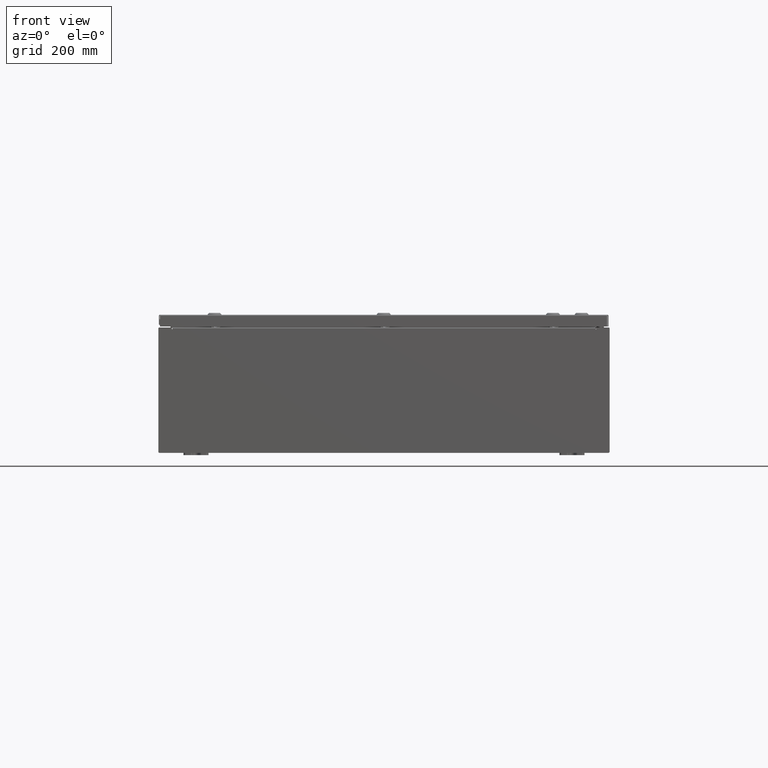
[diagram: clean part render]
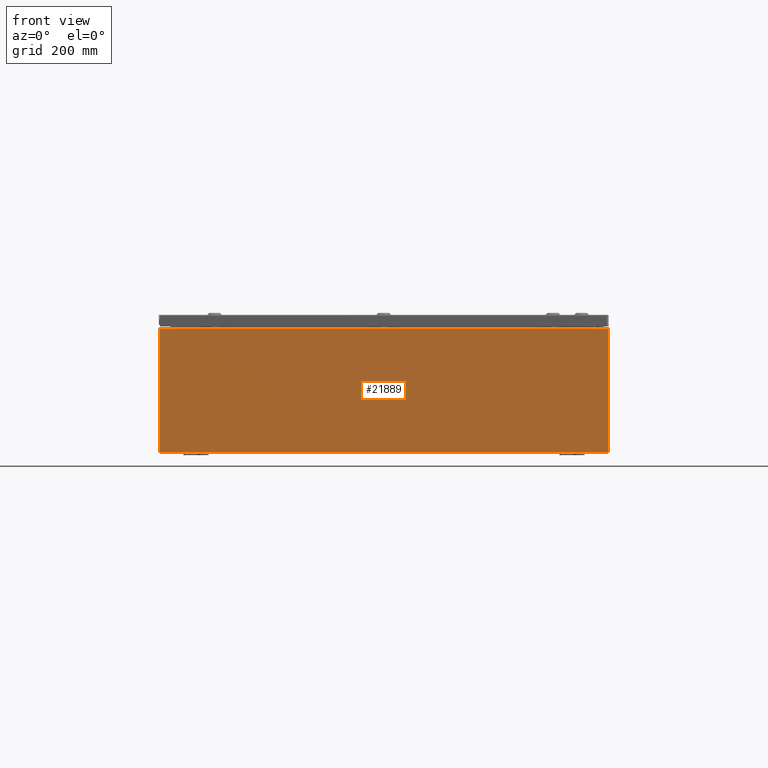
[diagram: same view with one face highlighted and labeled with its STEP entity id]
A machine part, front view. The second image highlights one B-rep face of the part: STEP entity #21889.
In plain terms, the highlighted planar face has unit normal (-0, 1, -0).
Its self-contained STEP definition (entity closure, byte-faithful):
#739 = FACE_OUTER_BOUND ( 'NONE', #53026, .T. ) ;
#749 = ORIENTED_EDGE ( 'NONE', *, *, #16635, .T. ) ;
#1988 = CARTESIAN_POINT ( 'NONE',  ( -17.92530000000000000, 0.0000000000000000000, -4.925300000000000000 ) ) ;
#2176 = VERTEX_POINT ( 'NONE', #13886 ) ;
#2668 = DIRECTION ( 'NONE',  ( 0.0000000000000000000, 0.0000000000000000000, -1.000000000000000000 ) ) ;
#2815 = EDGE_CURVE ( 'NONE', #56409, #12446, #9018, .T. ) ;
#2867 = CARTESIAN_POINT ( 'NONE',  ( -17.92530000000000000, 0.0000000000000000000, 4.925300000000000000 ) ) ;
#2920 = VERTEX_POINT ( 'NONE', #28163 ) ;
#3112 = CARTESIAN_POINT ( 'NONE',  ( -16.92454999999999600, 0.0000000000000000000, 4.874950000000000100 ) ) ;
#5310 = CARTESIAN_POINT ( 'NONE',  ( -16.88720000000000000, -0.0000000000000000000, 0.0000000000000000000 ) ) ;
#6355 = CARTESIAN_POINT ( 'NONE',  ( 17.92530000000000000, 0.0000000000000000000, 4.925300000000000000 ) ) ;
#7639 = ORIENTED_EDGE ( 'NONE', *, *, #58980, .F. ) ;
#8215 = VECTOR ( 'NONE', #55228, 39.37007874015748100 ) ;
#8924 = DIRECTION ( 'NONE',  ( 1.000000000000000000, 0.0000000000000000000, 0.0000000000000000000 ) ) ;
#8986 = LINE ( 'NONE', #1988, #35541 ) ;
#9018 = LINE ( 'NONE', #6355, #37226 ) ;
#9072 = VECTOR ( 'NONE', #37687, 39.37007874015748100 ) ;
#9348 = LINE ( 'NONE', #17708, #64154 ) ;
#10370 = DIRECTION ( 'NONE',  ( 0.0000000000000000000, 0.0000000000000000000, -1.000000000000000000 ) ) ;
#10544 = ORIENTED_EDGE ( 'NONE', *, *, #25349, .F. ) ;
#11330 = VERTEX_POINT ( 'NONE', #29937 ) ;
#12446 = VERTEX_POINT ( 'NONE', #58673 ) ;
#13178 = LINE ( 'NONE', #46045, #39746 ) ;
#13886 = CARTESIAN_POINT ( 'NONE',  ( -17.92530000000000000, 0.0000000000000000000, -4.925300000000000000 ) ) ;
#16532 = CARTESIAN_POINT ( 'NONE',  ( -16.90587499999999800, 0.0000000000000000000, 4.874950000000000100 ) ) ;
#16635 = EDGE_CURVE ( 'NONE', #39361, #52147, #9348, .T. ) ;
#17180 = CARTESIAN_POINT ( 'NONE',  ( -16.92454999999999600, 0.0000000000000000000, 4.925300000000000000 ) ) ;
#17233 = VECTOR ( 'NONE', #26386, 39.37007874015748100 ) ;
#17708 = CARTESIAN_POINT ( 'NONE',  ( -16.88720000000000000, -7.171100983368691200E-016, 4.912300000000000100 ) ) ;
#17833 = ORIENTED_EDGE ( 'NONE', *, *, #63737, .F. ) ;
#19236 = VERTEX_POINT ( 'NONE', #3112 ) ;
#20667 = CARTESIAN_POINT ( 'NONE',  ( 16.92455000000000000, 0.0000000000000000000, 4.925300000000000000 ) ) ;
#21876 = DIRECTION ( 'NONE',  ( 0.0000000000000000000, 0.0000000000000000000, -1.000000000000000000 ) ) ;
#21889 = ADVANCED_FACE ( 'NONE', ( #739 ), #22894, .F. ) ;
#22894 = PLANE ( 'NONE',  #39756 ) ;
#23469 = CARTESIAN_POINT ( 'NONE',  ( -16.92454999999999600, -0.0000000000000000000, 0.0000000000000000000 ) ) ;
#25349 = EDGE_CURVE ( 'NONE', #27038, #11330, #59588, .T. ) ;
#25472 = ORIENTED_EDGE ( 'NONE', *, *, #26891, .T. ) ;
#25537 = VERTEX_POINT ( 'NONE', #43493 ) ;
#26386 = DIRECTION ( 'NONE',  ( -8.681145560800009800E-014, 0.0000000000000000000, -1.000000000000000000 ) ) ;
#26891 = EDGE_CURVE ( 'NONE', #2920, #30368, #63620, .T. ) ;
#27038 = VERTEX_POINT ( 'NONE', #20667 ) ;
#27578 = ORIENTED_EDGE ( 'NONE', *, *, #50653, .T. ) ;
#28163 = CARTESIAN_POINT ( 'NONE',  ( -17.92530000000000000, 0.0000000000000000000, 4.925300000000000000 ) ) ;
#28263 = DIRECTION ( 'NONE',  ( 0.0000000000000000000, -1.000000000000000000, 0.0000000000000000000 ) ) ;
#29288 = VERTEX_POINT ( 'NONE', #30987 ) ;
#29305 = CARTESIAN_POINT ( 'NONE',  ( -17.92530000000000000, 0.0000000000000000000, 4.925300000000000000 ) ) ;
#29363 = VECTOR ( 'NONE', #10370, 39.37007874015748100 ) ;
#29937 = CARTESIAN_POINT ( 'NONE',  ( 16.92455000000000000, 0.0000000000000000000, 4.874950000000000100 ) ) ;
#30368 = VERTEX_POINT ( 'NONE', #17180 ) ;
#30987 = CARTESIAN_POINT ( 'NONE',  ( -16.88720000000000000, -0.0000000000000000000, 4.874950000000000100 ) ) ;
#31264 = ORIENTED_EDGE ( 'NONE', *, *, #2815, .T. ) ;
#33217 = CARTESIAN_POINT ( 'NONE',  ( 17.92530000000000000, 0.0000000000000000000, 4.925300000000000000 ) ) ;
#33695 = EDGE_CURVE ( 'NONE', #2176, #2920, #66505, .T. ) ;
#34411 = DIRECTION ( 'NONE',  ( -0.0000000000000000000, 1.000000000000000000, -0.0000000000000000000 ) ) ;
#35541 = VECTOR ( 'NONE', #45604, 39.37007874015748100 ) ;
#37226 = VECTOR ( 'NONE', #43473, 39.37007874015748100 ) ;
#37482 = CIRCLE ( 'NONE', #48130, 0.01867499999999949400 ) ;
#37687 = DIRECTION ( 'NONE',  ( 0.0000000000000000000, 0.0000000000000000000, 1.000000000000000000 ) ) ;
#38279 = VECTOR ( 'NONE', #66183, 39.37007874015748100 ) ;
#39063 = DIRECTION ( 'NONE',  ( 1.000000000000000000, 0.0000000000000000000, 0.0000000000000000000 ) ) ;
#39361 = VERTEX_POINT ( 'NONE', #63770 ) ;
#39746 = VECTOR ( 'NONE', #8924, 39.37007874015748100 ) ;
#39756 = AXIS2_PLACEMENT_3D ( 'NONE', #49336, #28263, #65376 ) ;
#40426 = EDGE_CURVE ( 'NONE', #11330, #25537, #42887, .T. ) ;
#41233 = CARTESIAN_POINT ( 'NONE',  ( 16.88720000000000000, 0.0000000000000000000, 4.912300000000000100 ) ) ;
#42887 = CIRCLE ( 'NONE', #57780, 0.01867499999999949400 ) ;
#43473 = DIRECTION ( 'NONE',  ( 0.0000000000000000000, 0.0000000000000000000, -1.000000000000000000 ) ) ;
#43493 = CARTESIAN_POINT ( 'NONE',  ( 16.88720000000000000, 0.0000000000000000000, 4.874950000000000100 ) ) ;
#43530 = EDGE_CURVE ( 'NONE', #39361, #29288, #62573, .T. ) ;
#45604 = DIRECTION ( 'NONE',  ( -1.000000000000000000, -0.0000000000000000000, -0.0000000000000000000 ) ) ;
#46045 = CARTESIAN_POINT ( 'NONE',  ( -17.92530000000000000, 0.0000000000000000000, 4.925300000000000000 ) ) ;
#47497 = CARTESIAN_POINT ( 'NONE',  ( 16.92454999999957700, -0.0000000000000000000, -1.469244821010341400E-012 ) ) ;
#48130 = AXIS2_PLACEMENT_3D ( 'NONE', #16532, #53622, #21876 ) ;
#49336 = CARTESIAN_POINT ( 'NONE',  ( 0.0000000000000000000, 0.0000000000000000000, 0.0000000000000000000 ) ) ;
#50150 = ORIENTED_EDGE ( 'NONE', *, *, #52645, .T. ) ;
#50395 = DIRECTION ( 'NONE',  ( 1.000000000000000000, 0.0000000000000000000, 0.0000000000000000000 ) ) ;
#50653 = EDGE_CURVE ( 'NONE', #27038, #56409, #13178, .T. ) ;
#51386 = LINE ( 'NONE', #53836, #9072 ) ;
#52147 = VERTEX_POINT ( 'NONE', #41233 ) ;
#52645 = EDGE_CURVE ( 'NONE', #12446, #2176, #8986, .T. ) ;
#53026 = EDGE_LOOP ( 'NONE', ( #17833, #7639, #56325, #749, #66912, #65726, #10544, #27578, #31264, #50150, #59355, #25472 ) ) ;
#53622 = DIRECTION ( 'NONE',  ( -0.0000000000000000000, 1.000000000000000000, -0.0000000000000000000 ) ) ;
#53836 = CARTESIAN_POINT ( 'NONE',  ( 16.88720000000000000, 0.0000000000000000000, 0.0000000000000000000 ) ) ;
#55228 = DIRECTION ( 'NONE',  ( 0.0000000000000000000, 0.0000000000000000000, 1.000000000000000000 ) ) ;
#56325 = ORIENTED_EDGE ( 'NONE', *, *, #43530, .F. ) ;
#56409 = VERTEX_POINT ( 'NONE', #33217 ) ;
#57780 = AXIS2_PLACEMENT_3D ( 'NONE', #66204, #34411, #2668 ) ;
#58673 = CARTESIAN_POINT ( 'NONE',  ( 17.92530000000000000, 0.0000000000000000000, -4.925300000000000000 ) ) ;
#58980 = EDGE_CURVE ( 'NONE', #29288, #19236, #37482, .T. ) ;
#59355 = ORIENTED_EDGE ( 'NONE', *, *, #33695, .T. ) ;
#59588 = LINE ( 'NONE', #47497, #17233 ) ;
#60311 = VECTOR ( 'NONE', #50395, 39.37007874015748100 ) ;
#61334 = LINE ( 'NONE', #23469, #8215 ) ;
#62573 = LINE ( 'NONE', #5310, #29363 ) ;
#62963 = EDGE_CURVE ( 'NONE', #25537, #52147, #51386, .T. ) ;
#63620 = LINE ( 'NONE', #2867, #60311 ) ;
#63737 = EDGE_CURVE ( 'NONE', #19236, #30368, #61334, .T. ) ;
#63770 = CARTESIAN_POINT ( 'NONE',  ( -16.88720000000000000, -7.171100983368691200E-016, 4.912300000000000100 ) ) ;
#64154 = VECTOR ( 'NONE', #39063, 39.37007874015748100 ) ;
#65376 = DIRECTION ( 'NONE',  ( 0.0000000000000000000, -0.0000000000000000000, -1.000000000000000000 ) ) ;
#65726 = ORIENTED_EDGE ( 'NONE', *, *, #40426, .F. ) ;
#66183 = DIRECTION ( 'NONE',  ( -0.0000000000000000000, -0.0000000000000000000, 1.000000000000000000 ) ) ;
#66204 = CARTESIAN_POINT ( 'NONE',  ( 16.90587500000000200, 0.0000000000000000000, 4.874950000000000100 ) ) ;
#66505 = LINE ( 'NONE', #29305, #38279 ) ;
#66912 = ORIENTED_EDGE ( 'NONE', *, *, #62963, .F. ) ;